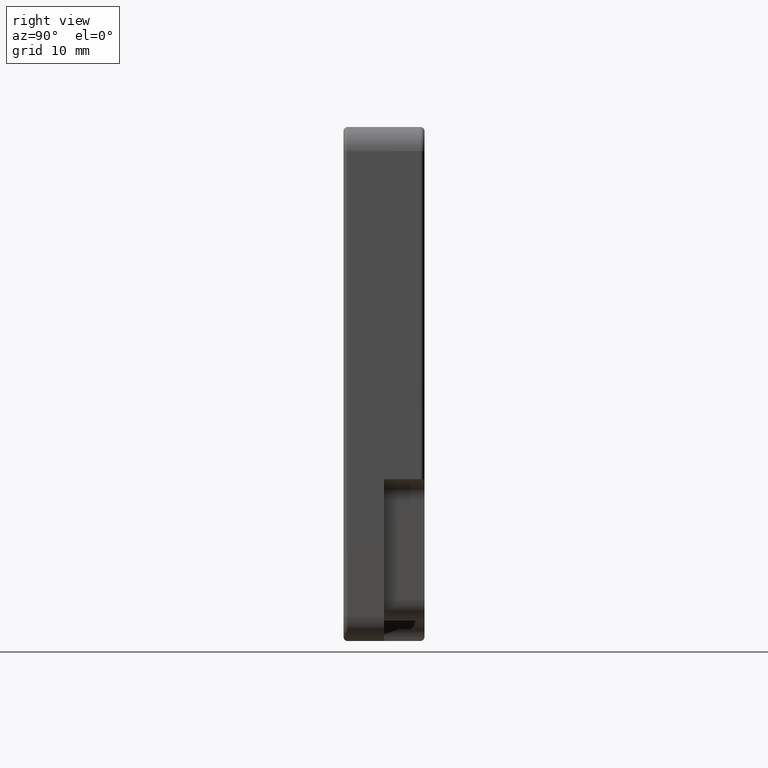
[diagram: clean part render]
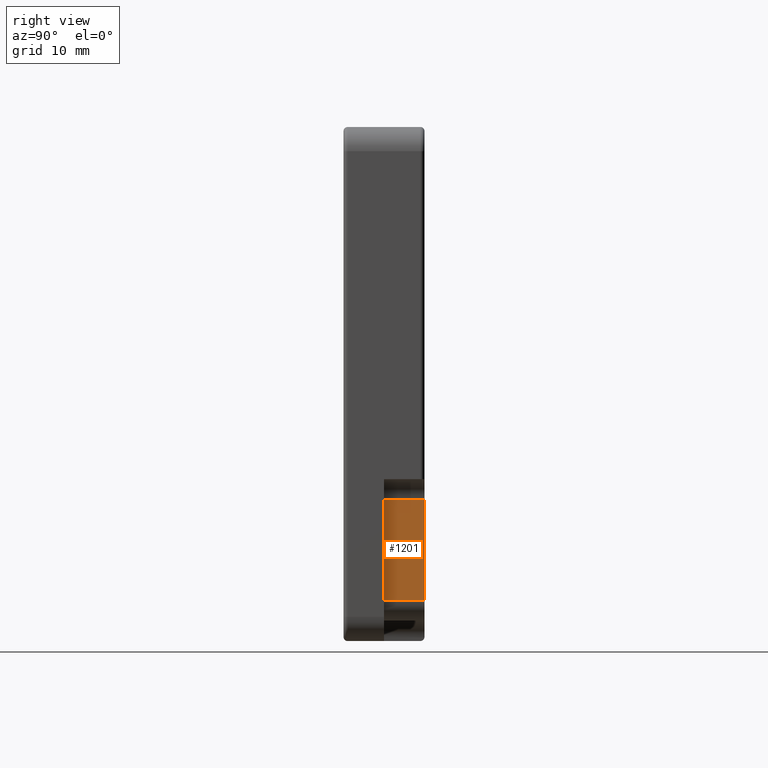
[diagram: same view with one face highlighted and labeled with its STEP entity id]
A machine part, right view. The second image highlights one B-rep face of the part: STEP entity #1201.
In plain terms, the highlighted planar face has unit normal (-1, 0, -0).
Its self-contained STEP definition (entity closure, byte-faithful):
#291 = DIRECTION ( 'NONE',  ( -0.000000000000000000, 1.000000000000000000, -0.000000000000000000 ) ) ;
#352 = CARTESIAN_POINT ( 'NONE',  ( 29.24999999999998579, 10.00000000000000000, -14.24999999999999822 ) ) ;
#382 = EDGE_LOOP ( 'NONE', ( #1073, #4314, #1457, #3179 ) ) ;
#454 = VECTOR ( 'NONE', #590, 1000.000000000000000 ) ;
#482 = VERTEX_POINT ( 'NONE', #3186 ) ;
#503 = EDGE_CURVE ( 'NONE', #482, #2987, #2226, .T. ) ;
#590 = DIRECTION ( 'NONE',  ( -0.000000000000000000, -0.000000000000000000, 1.000000000000000000 ) ) ;
#836 = DIRECTION ( 'NONE',  ( -1.000000000000000000, 0.000000000000000000, -0.000000000000000000 ) ) ;
#855 = FACE_OUTER_BOUND ( 'NONE', #382, .T. ) ;
#1067 = LINE ( 'NONE', #3429, #3884 ) ;
#1073 = ORIENTED_EDGE ( 'NONE', *, *, #3515, .T. ) ;
#1201 = ADVANCED_FACE ( 'NONE', ( #855 ), #1942, .F. ) ;
#1211 = VECTOR ( 'NONE', #3426, 1000.000000000000000 ) ;
#1222 = CARTESIAN_POINT ( 'NONE',  ( 29.24999999999998579, 5.000000000000000000, -26.74999999999998224 ) ) ;
#1298 = LINE ( 'NONE', #2634, #454 ) ;
#1372 = LINE ( 'NONE', #352, #1211 ) ;
#1389 = EDGE_CURVE ( 'NONE', #482, #2242, #1298, .T. ) ;
#1457 = ORIENTED_EDGE ( 'NONE', *, *, #1389, .F. ) ;
#1942 = PLANE ( 'NONE',  #4168 ) ;
#1944 = CARTESIAN_POINT ( 'NONE',  ( 29.24999999999998579, 10.00000000000000000, -14.24999999999999822 ) ) ;
#2002 = EDGE_CURVE ( 'NONE', #2242, #3367, #1067, .T. ) ;
#2226 = LINE ( 'NONE', #1222, #3603 ) ;
#2242 = VERTEX_POINT ( 'NONE', #2825 ) ;
#2522 = DIRECTION ( 'NONE',  ( -0.000000000000000000, 1.000000000000000000, -0.000000000000000000 ) ) ;
#2634 = CARTESIAN_POINT ( 'NONE',  ( 29.24999999999998579, 5.000000000000000000, -14.24999999999999822 ) ) ;
#2716 = CARTESIAN_POINT ( 'NONE',  ( 29.24999999999998579, 10.00000000000000000, -26.74999999999998224 ) ) ;
#2825 = CARTESIAN_POINT ( 'NONE',  ( 29.24999999999998579, 5.000000000000000000, -14.24999999999999822 ) ) ;
#2987 = VERTEX_POINT ( 'NONE', #2716 ) ;
#3179 = ORIENTED_EDGE ( 'NONE', *, *, #503, .T. ) ;
#3186 = CARTESIAN_POINT ( 'NONE',  ( 29.24999999999998579, 5.000000000000000000, -26.74999999999998224 ) ) ;
#3188 = DIRECTION ( 'NONE',  ( -0.000000000000000000, 0.000000000000000000, 1.000000000000000000 ) ) ;
#3367 = VERTEX_POINT ( 'NONE', #1944 ) ;
#3426 = DIRECTION ( 'NONE',  ( -0.000000000000000000, -0.000000000000000000, 1.000000000000000000 ) ) ;
#3429 = CARTESIAN_POINT ( 'NONE',  ( 29.24999999999998579, 5.000000000000000000, -14.24999999999999822 ) ) ;
#3515 = EDGE_CURVE ( 'NONE', #2987, #3367, #1372, .T. ) ;
#3603 = VECTOR ( 'NONE', #2522, 1000.000000000000000 ) ;
#3884 = VECTOR ( 'NONE', #291, 1000.000000000000000 ) ;
#4168 = AXIS2_PLACEMENT_3D ( 'NONE', #4244, #836, #3188 ) ;
#4244 = CARTESIAN_POINT ( 'NONE',  ( 29.24999999999998579, 5.000000000000000000, -14.24999999999999822 ) ) ;
#4314 = ORIENTED_EDGE ( 'NONE', *, *, #2002, .F. ) ;